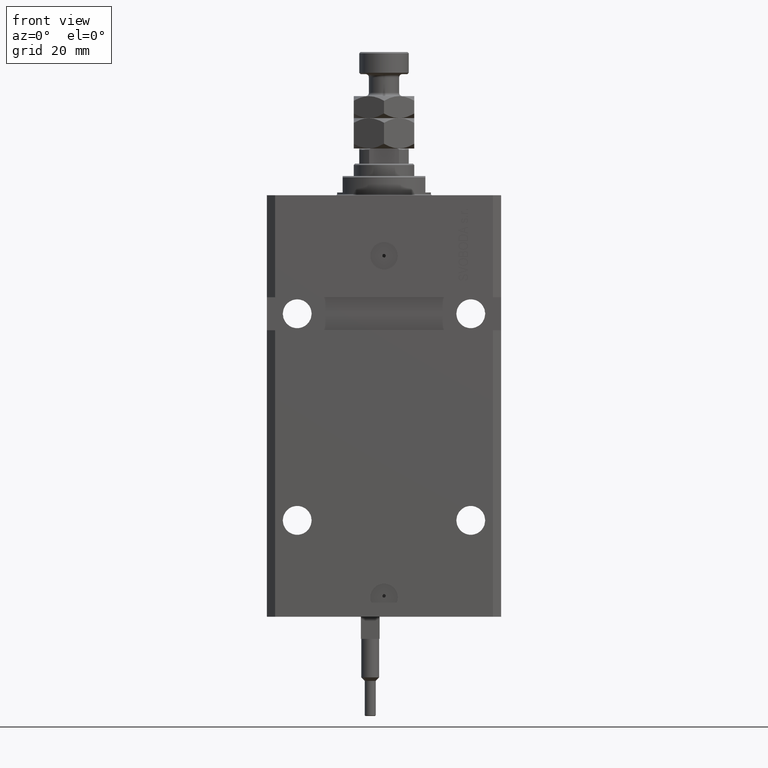
[diagram: clean part render]
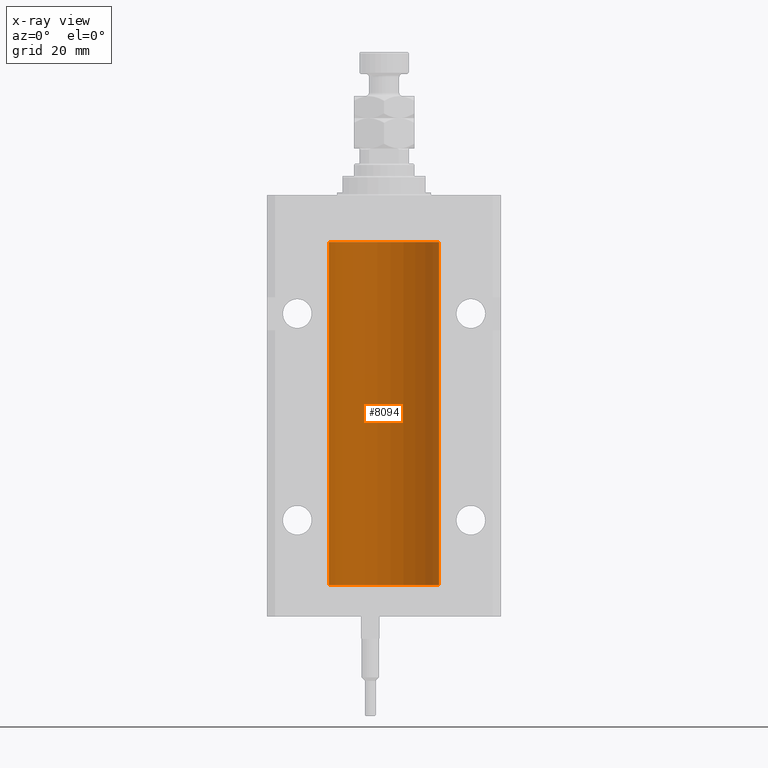
[diagram: x-ray — body ghosted, one internal face saturated and labeled with its STEP entity id]
A machine part, front view, then the same camera in x-ray: the body is ghosted and one INTERNAL B-rep face — a face not visible from any outside direction — is saturated and labeled: STEP entity #8094.
In plain terms, the highlighted cylindrical surface (partial cylindrical patch) has radius 20 mm, axis along (0, 0, 1).
Its self-contained STEP definition (entity closure, byte-faithful):
#245 = DIRECTION ( 'NONE',  ( 1.000000000000000000, 0.000000000000000000, 0.000000000000000000 ) ) ;
#759 = AXIS2_PLACEMENT_3D ( 'NONE', #31949, #20174, #245 ) ;
#1221 = CARTESIAN_POINT ( 'NONE',  ( 20.00000000000000000, 0.000000000000000000, -17.00000000000000000 ) ) ;
#1783 = CARTESIAN_POINT ( 'NONE',  ( -19.99256581701871482, 0.5573276956902001311, -23.67348565770948809 ) ) ;
#4031 = CIRCLE ( 'NONE', #759, 20.00000000000000000 ) ;
#4231 = CARTESIAN_POINT ( 'NONE',  ( -20.00000000000000000, -2.867584836844214272E-15, -23.37500000000000000 ) ) ;
#4915 = CARTESIAN_POINT ( 'NONE',  ( -19.99999999999999645, 0.1631688615953307553, -139.6249999999998010 ) ) ;
#6128 = CARTESIAN_POINT ( 'NONE',  ( -20.00000000000000000, -2.867584836844214272E-15, -23.37500000000000000 ) ) ;
#6229 = EDGE_CURVE ( 'NONE', #7462, #36116, #27817, .T. ) ;
#6438 = ORIENTED_EDGE ( 'NONE', *, *, #8633, .F. ) ;
#7222 = DIRECTION ( 'NONE',  ( 1.000000000000000000, 0.000000000000000000, 0.000000000000000000 ) ) ;
#7462 = VERTEX_POINT ( 'NONE', #4231 ) ;
#8094 = ADVANCED_FACE ( 'NONE', ( #37281 ), #13493, .F. ) ;
#8234 = CARTESIAN_POINT ( 'NONE',  ( -19.99766197842594195, 0.3150331617867615508, -138.4540207010250299 ) ) ;
#8633 = EDGE_CURVE ( 'NONE', #27595, #44780, #30208, .T. ) ;
#8730 = EDGE_CURVE ( 'NONE', #7462, #17341, #11231, .T. ) ;
#8748 = DIRECTION ( 'NONE',  ( -0.000000000000000000, -0.000000000000000000, 1.000000000000000000 ) ) ;
#9672 = DIRECTION ( 'NONE',  ( 1.000000000000000000, 0.000000000000000000, 0.000000000000000000 ) ) ;
#11231 = B_SPLINE_CURVE_WITH_KNOTS ( 'NONE', 3,
 ( #6128, #25055, #41405, #25319, #32712, #1783, #29133, #49082, #48564, #25819, #44729, #37580 ),
 .UNSPECIFIED., .F., .F.,
 ( 4, 2, 2, 2, 2, 4 ),
 ( 5.848927291235706941E-19, 0.0002442693137305304075, 0.0004885386274610601645, 0.0009770772549221123059, 0.001465615882383164339, 0.001954154509844215938 ),
 .UNSPECIFIED. ) ;
#11517 = CARTESIAN_POINT ( 'NONE',  ( -20.00000000000000000, 2.449293598294706513E-15, -141.5999999999999943 ) ) ;
#11814 = CARTESIAN_POINT ( 'NONE',  ( -19.99023018003212471, 0.6250578794725458742, -139.1628480970496753 ) ) ;
#12069 = CARTESIAN_POINT ( 'NONE',  ( -19.99253506710755346, 0.5587120480776690545, -139.3251162083025463 ) ) ;
#12070 = LINE ( 'NONE', #12579, #17308 ) ;
#12471 = DIRECTION ( 'NONE',  ( -0.000000000000000000, -0.000000000000000000, 1.000000000000000000 ) ) ;
#12578 = CARTESIAN_POINT ( 'NONE',  ( -20.00000000000010303, 3.580159249456421507E-13, -139.6250000000033253 ) ) ;
#12579 = CARTESIAN_POINT ( 'NONE',  ( 20.00000000000000000, 0.000000000000000000, -141.5999999999999943 ) ) ;
#13493 = CYLINDRICAL_SURFACE ( 'NONE', #13529, 20.00000000000000000 ) ;
#13529 = AXIS2_PLACEMENT_3D ( 'NONE', #33182, #25012, #9672 ) ;
#13678 = ORIENTED_EDGE ( 'NONE', *, *, #23213, .F. ) ;
#14240 = CARTESIAN_POINT ( 'NONE',  ( -20.00000000000010303, 3.580159282543646009E-13, -24.62500000000332889 ) ) ;
#15478 = DIRECTION ( 'NONE',  ( -0.000000000000000000, -0.000000000000000000, 1.000000000000000000 ) ) ;
#16080 = CARTESIAN_POINT ( 'NONE',  ( -20.00000000000000000, 2.449293598294706513E-15, -141.5999999999999943 ) ) ;
#17308 = VECTOR ( 'NONE', #8748, 1000.000000000000000 ) ;
#17341 = VERTEX_POINT ( 'NONE', #14240 ) ;
#19615 = EDGE_CURVE ( 'NONE', #40597, #27595, #25722, .T. ) ;
#20174 = DIRECTION ( 'NONE',  ( 0.000000000000000000, 0.000000000000000000, 1.000000000000000000 ) ) ;
#22330 = CARTESIAN_POINT ( 'NONE',  ( -20.00000000000000000, 0.08259581631025542103, -138.3749999999999716 ) ) ;
#23213 = EDGE_CURVE ( 'NONE', #24426, #17341, #43087, .T. ) ;
#23848 = ORIENTED_EDGE ( 'NONE', *, *, #39955, .T. ) ;
#24426 = VERTEX_POINT ( 'NONE', #36640 ) ;
#25012 = DIRECTION ( 'NONE',  ( -0.000000000000000000, -0.000000000000000000, 1.000000000000000000 ) ) ;
#25055 = CARTESIAN_POINT ( 'NONE',  ( -19.99999999999999645, 0.08259581631026780002, -23.37500000000000000 ) ) ;
#25319 = CARTESIAN_POINT ( 'NONE',  ( -19.99766197842594906, 0.3150331617867667688, -23.45402070102505476 ) ) ;
#25722 = CIRCLE ( 'NONE', #48591, 20.00000000000000000 ) ;
#25819 = CARTESIAN_POINT ( 'NONE',  ( -19.99769349528941120, 0.3253804398728645242, -24.55855820727680339 ) ) ;
#26182 = CARTESIAN_POINT ( 'NONE',  ( -20.00000000000000000, -1.756252550797319649E-14, -138.3749999999999716 ) ) ;
#27409 = CARTESIAN_POINT ( 'NONE',  ( -19.99023380173166231, 0.6249420416828387337, -138.8367079305639606 ) ) ;
#27595 = VERTEX_POINT ( 'NONE', #16080 ) ;
#27817 = LINE ( 'NONE', #35731, #49385 ) ;
#28177 = CARTESIAN_POINT ( 'NONE',  ( -19.99256581701871482, 0.5573276956901845880, -138.6734856577095059 ) ) ;
#28183 = VECTOR ( 'NONE', #15478, 1000.000000000000000 ) ;
#28431 = CARTESIAN_POINT ( 'NONE',  ( -19.99638934703457238, 0.3843678041337506568, -138.5004636297809952 ) ) ;
#29133 = CARTESIAN_POINT ( 'NONE',  ( -19.99023380173166231, 0.6249420416828462832, -23.83670793056396064 ) ) ;
#30208 = LINE ( 'NONE', #11517, #39686 ) ;
#31351 = VERTEX_POINT ( 'NONE', #1221 ) ;
#31881 = CARTESIAN_POINT ( 'NONE',  ( -20.00000000000000000, 2.449293598294706513E-15, -17.00000000000000000 ) ) ;
#31949 = CARTESIAN_POINT ( 'NONE',  ( 0.000000000000000000, 0.000000000000000000, -17.00000000000000000 ) ) ;
#32001 = CARTESIAN_POINT ( 'NONE',  ( -19.99947377218718358, 0.1636439183262808073, -138.3912636400466170 ) ) ;
#32712 = CARTESIAN_POINT ( 'NONE',  ( -19.99638934703457593, 0.3843678041337688644, -23.50046362978100944 ) ) ;
#32926 = ORIENTED_EDGE ( 'NONE', *, *, #8730, .T. ) ;
#33182 = CARTESIAN_POINT ( 'NONE',  ( 0.000000000000000000, 0.000000000000000000, -141.5999999999999943 ) ) ;
#34098 = CARTESIAN_POINT ( 'NONE',  ( -20.00000000000010303, 3.580159249456421507E-13, -139.6250000000033253 ) ) ;
#35731 = CARTESIAN_POINT ( 'NONE',  ( -20.00000000000000000, 2.449293598294706513E-15, -141.5999999999999943 ) ) ;
#36116 = VERTEX_POINT ( 'NONE', #31881 ) ;
#36612 = EDGE_CURVE ( 'NONE', #31351, #36116, #4031, .T. ) ;
#36640 = CARTESIAN_POINT ( 'NONE',  ( -20.00000000000000000, -1.756252550797319649E-14, -138.3749999999999716 ) ) ;
#37281 = FACE_OUTER_BOUND ( 'NONE', #40516, .T. ) ;
#37580 = CARTESIAN_POINT ( 'NONE',  ( -20.00000000000010303, 3.580159282543646009E-13, -24.62500000000332889 ) ) ;
#38123 = DIRECTION ( 'NONE',  ( -0.000000000000000000, -0.000000000000000000, 1.000000000000000000 ) ) ;
#39010 = ORIENTED_EDGE ( 'NONE', *, *, #6229, .F. ) ;
#39289 = CARTESIAN_POINT ( 'NONE',  ( 20.00000000000000000, 0.000000000000000000, -141.5999999999999943 ) ) ;
#39686 = VECTOR ( 'NONE', #38123, 1000.000000000000000 ) ;
#39913 = ORIENTED_EDGE ( 'NONE', *, *, #36612, .T. ) ;
#39955 = EDGE_CURVE ( 'NONE', #40597, #31351, #12070, .T. ) ;
#40516 = EDGE_LOOP ( 'NONE', ( #6438, #44103, #23848, #39913, #39010, #32926, #13678, #41126 ) ) ;
#40597 = VERTEX_POINT ( 'NONE', #39289 ) ;
#41126 = ORIENTED_EDGE ( 'NONE', *, *, #49940, .T. ) ;
#41405 = CARTESIAN_POINT ( 'NONE',  ( -19.99947377218718714, 0.1636439183262877461, -23.39126364004656011 ) ) ;
#42240 = DIRECTION ( 'NONE',  ( 0.000000000000000000, 0.000000000000000000, 1.000000000000000000 ) ) ;
#42993 = CARTESIAN_POINT ( 'NONE',  ( -19.99769349528941120, 0.3253804398728610270, -139.5585582072767750 ) ) ;
#43087 = LINE ( 'NONE', #46677, #28183 ) ;
#44103 = ORIENTED_EDGE ( 'NONE', *, *, #19615, .F. ) ;
#44729 = CARTESIAN_POINT ( 'NONE',  ( -20.00000000000000000, 0.1631688615953320320, -24.62499999999985434 ) ) ;
#44780 = VERTEX_POINT ( 'NONE', #34098 ) ;
#46677 = CARTESIAN_POINT ( 'NONE',  ( -20.00000000000000000, 2.449293598294706513E-15, -141.5999999999999943 ) ) ;
#48564 = CARTESIAN_POINT ( 'NONE',  ( -19.99253506710754991, 0.5587120480776751608, -24.32511620830248589 ) ) ;
#48591 = AXIS2_PLACEMENT_3D ( 'NONE', #49427, #42240, #7222 ) ;
#48607 = B_SPLINE_CURVE_WITH_KNOTS ( 'NONE', 3,
 ( #26182, #22330, #32001, #8234, #28431, #28177, #27409, #11814, #12069, #42993, #4915, #12578 ),
 .UNSPECIFIED., .F., .F.,
 ( 4, 2, 2, 2, 2, 4 ),
 ( 5.247116368830962784E-19, 0.0002442693137305545852, 0.0004885386274611086283, 0.0009770772549221576255, 0.001465615882383206840, 0.001954154509844256270 ),
 .UNSPECIFIED. ) ;
#49082 = CARTESIAN_POINT ( 'NONE',  ( -19.99023018003212471, 0.6250578794725500931, -24.16284809704970371 ) ) ;
#49385 = VECTOR ( 'NONE', #12471, 1000.000000000000000 ) ;
#49427 = CARTESIAN_POINT ( 'NONE',  ( 0.000000000000000000, 0.000000000000000000, -141.5999999999999943 ) ) ;
#49940 = EDGE_CURVE ( 'NONE', #24426, #44780, #48607, .T. ) ;